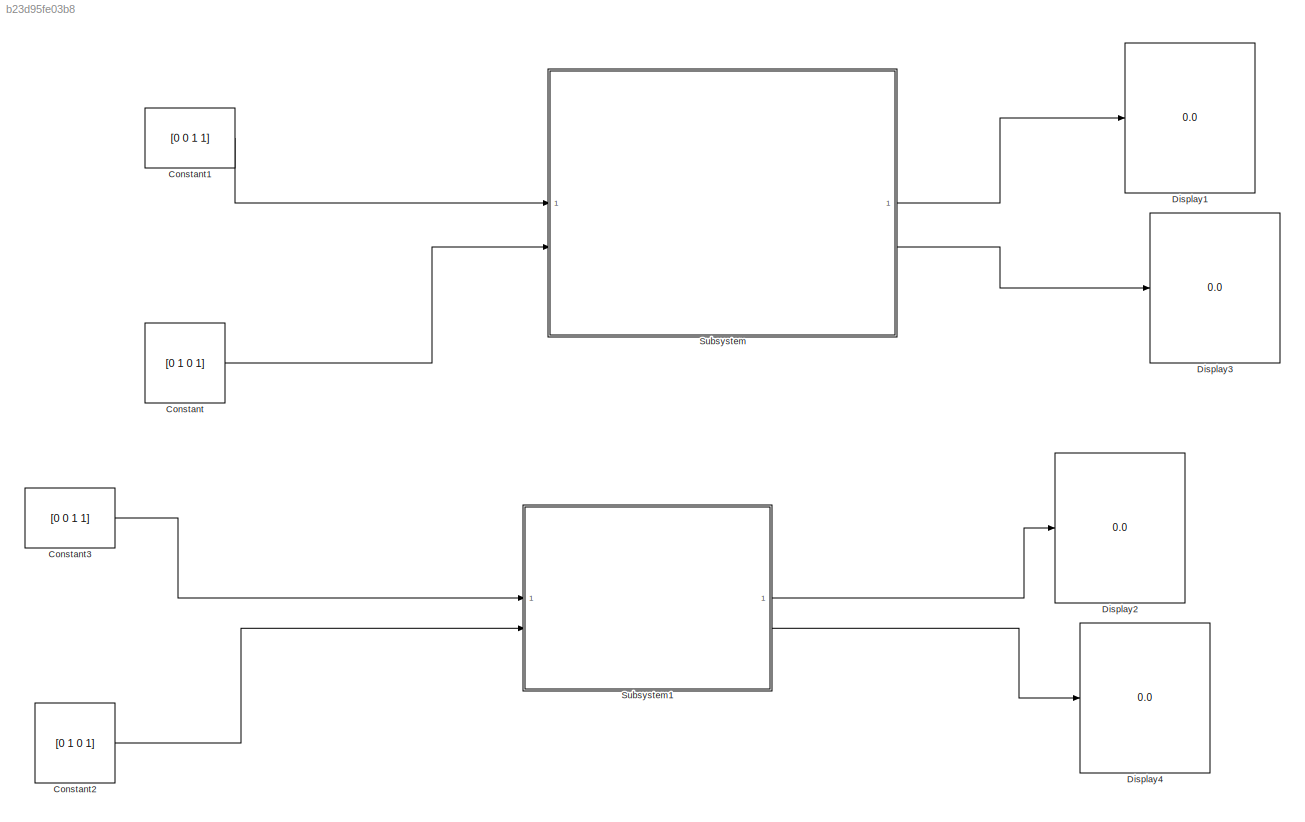
MODEL slx_b23d95fe03b8
KIND model
CONFIG AbsTol = auto
CONFIG EnableMultiTasking = off
CONFIG FixedStep = auto
CONFIG MaxStep = auto
CONFIG MinStep = auto
CONFIG RelTol = 1e-3
CONFIG SampleTimeConstraint = Unconstrained
CONFIG SolverName = VariableStepAuto
CONFIG StartTime = 0.0
CONFIG StopTime = 10.0
BLOCK [Constant] Constant
  Value = [0 1 0 1]
BLOCK [Constant] Constant1
  Value = [0 0 1 1]
BLOCK [Constant] Constant2
  Value = [0 1 0 1]
BLOCK [Constant] Constant3
  Value = [0 0 1 1]
BLOCK [Display] Display1
  Decimation = 1
BLOCK [Display] Display2
  Decimation = 1
BLOCK [Display] Display3
  Decimation = 1
BLOCK [Display] Display4
  Decimation = 1
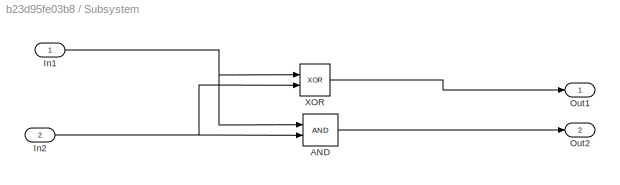
BLOCK [SubSystem] Subsystem
BLOCK [Logic] Subsystem/AND
  AllPortsSameDT = off
  IconShape = distinctive
  OutDataTypeStr = boolean
BLOCK [Inport] Subsystem/In1
BLOCK [Inport] Subsystem/In2
  Port = 2
BLOCK [Outport] Subsystem/Out1
BLOCK [Outport] Subsystem/Out2
  Port = 2
BLOCK [Logic] Subsystem/XOR
  AllPortsSameDT = off
  IconShape = distinctive
  Operator = XOR
  OutDataTypeStr = boolean
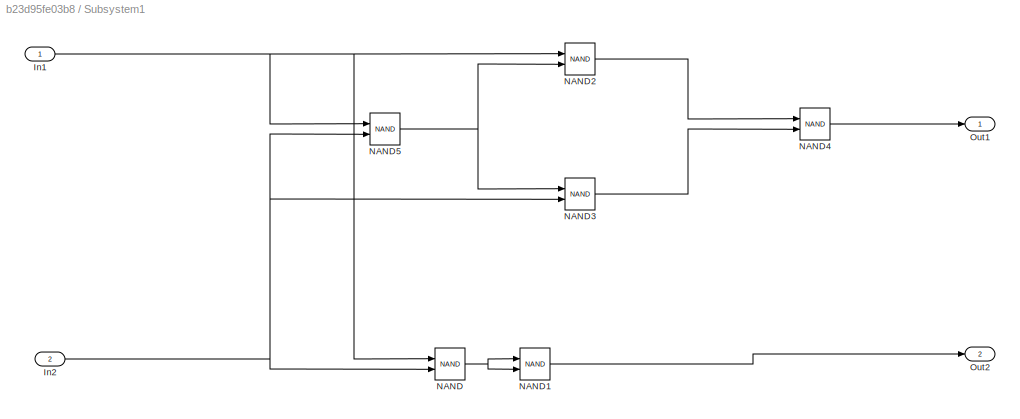
BLOCK [SubSystem] Subsystem1
BLOCK [Inport] Subsystem1/In1
BLOCK [Inport] Subsystem1/In2
  Port = 2
BLOCK [Logic] Subsystem1/NAND
  AllPortsSameDT = off
  IconShape = distinctive
  Operator = NAND
  OutDataTypeStr = boolean
BLOCK [Logic] Subsystem1/NAND1
  AllPortsSameDT = off
  IconShape = distinctive
  Operator = NAND
  OutDataTypeStr = boolean
BLOCK [Logic] Subsystem1/NAND2
  AllPortsSameDT = off
  IconShape = distinctive
  Operator = NAND
  OutDataTypeStr = boolean
BLOCK [Logic] Subsystem1/NAND3
  AllPortsSameDT = off
  IconShape = distinctive
  Operator = NAND
  OutDataTypeStr = boolean
BLOCK [Logic] Subsystem1/NAND4
  AllPortsSameDT = off
  IconShape = distinctive
  Operator = NAND
  OutDataTypeStr = boolean
BLOCK [Logic] Subsystem1/NAND5
  AllPortsSameDT = off
  IconShape = distinctive
  Operator = NAND
  OutDataTypeStr = boolean
BLOCK [Outport] Subsystem1/Out1
BLOCK [Outport] Subsystem1/Out2
  Port = 2
LINE Constant1:1 -> Subsystem:1
LINE Constant2:1 -> Subsystem1:2
LINE Constant3:1 -> Subsystem1:1
LINE Constant:1 -> Subsystem:2
LINE Subsystem/AND:1 -> Subsystem/Out2:1
NET Subsystem/In1:1 -> Subsystem/AND:1, Subsystem/XOR:1
NET Subsystem/In2:1 -> Subsystem/AND:2, Subsystem/XOR:2
LINE Subsystem/XOR:1 -> Subsystem/Out1:1
NET Subsystem1/In1:1 -> Subsystem1/NAND2:1, Subsystem1/NAND5:1, Subsystem1/NAND:1
NET Subsystem1/In2:1 -> Subsystem1/NAND3:2, Subsystem1/NAND5:2, Subsystem1/NAND:2
LINE Subsystem1/NAND1:1 -> Subsystem1/Out2:1
LINE Subsystem1/NAND2:1 -> Subsystem1/NAND4:1
LINE Subsystem1/NAND3:1 -> Subsystem1/NAND4:2
LINE Subsystem1/NAND4:1 -> Subsystem1/Out1:1
NET Subsystem1/NAND5:1 -> Subsystem1/NAND2:2, Subsystem1/NAND3:1
NET Subsystem1/NAND:1 -> Subsystem1/NAND1:1, Subsystem1/NAND1:2
LINE Subsystem1:1 -> Display2:1
LINE Subsystem1:2 -> Display4:1
LINE Subsystem:1 -> Display1:1
LINE Subsystem:2 -> Display3:1
note: NET lines group one-source signal fan-out (src -> all destinations, sorted); 1:1 wires keep LINE
